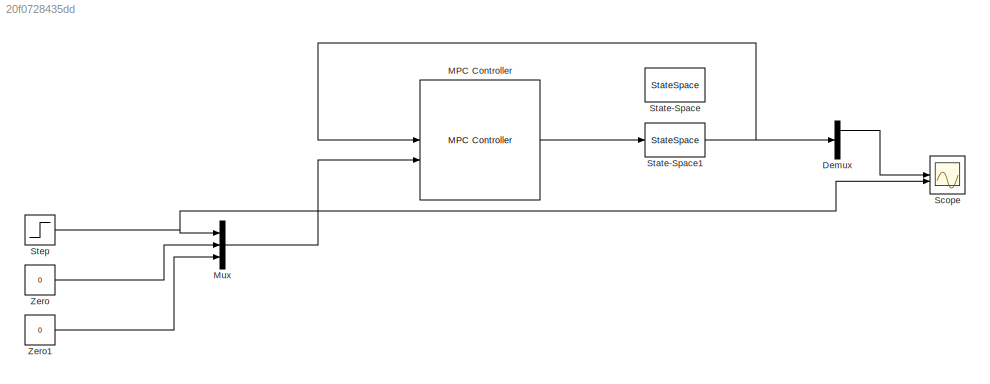
MODEL slx_20f0728435dd
KIND model
CONFIG AbsTol = auto
CONFIG EnableMultiTasking = off
CONFIG FixedStep = auto
CONFIG MaxStep = auto
CONFIG MinStep = auto
CONFIG RelTol = 1e-3
CONFIG SampleTimeConstraint = Unconstrained
CONFIG SolverName = VariableStepAuto
CONFIG StartTime = 0.0
CONFIG StopTime = 10
BLOCK [Demux] Demux
  Outputs = 3
BLOCK [Reference] MPC Controller  REF=mpclib/MPC Controller  (lib defined in mdl_ae329e0e0455)
  SCDEnableBlockLinearizationSpecification = on
  SourceBlock = mpclib/MPC Controller
  SourceType = MPC
BLOCK [Mux] Mux
  DisplayOption = bar
  Inputs = 3
BLOCK [Scope] Scope
  Floating = off
  NumInputPorts = 2
  ScopeSpecificationString = Simulink.scopes.TimeScopeBlockCfg('CurrentConfiguration', extmgr.ConfigurationSet(extmgr.Configuration('Core','General UI',true),extmgr.Configuration('Core','Source UI',true),extmgr.Configuration('Sources','WiredSimulink',true),extmgr.Configuration('Visuals','Time Domain',true,'SerializedDisplays',{struct('MinYLimReal','-91.1818','MaxYLimReal','11.24242','YLabelReal','','MinYLimMag','0.00000','Max...<+1367ch>
BLOCK [StateSpace] State-Space
  A = sysdis2.A
  B = sysdis2.B
  C = eye(6)
  D = zeros(6,3)
  InitialCondition = 0
BLOCK [StateSpace] State-Space1
  A = sys.A
  B = sys.B
  C = sys.C
  D = sys.D
  InitialCondition = 0
BLOCK [Step] Step
  SampleTime = 0
BLOCK [Constant] Zero
  OutDataTypeStr = Inherit: Inherit via back propagation
  Value = 0
BLOCK [Constant] Zero1
  OutDataTypeStr = Inherit: Inherit via back propagation
  Value = 0
LINE Demux:1 -> Scope:1
LINE MPC Controller:1 -> State-Space1:1
LINE Mux:1 -> MPC Controller:2
NET State-Space1:1 -> Demux:1, MPC Controller:1
NET Step:1 -> Mux:1, Scope:2
LINE Zero1:1 -> Mux:3
LINE Zero:1 -> Mux:2
note: NET lines group one-source signal fan-out (src -> all destinations, sorted); 1:1 wires keep LINE
